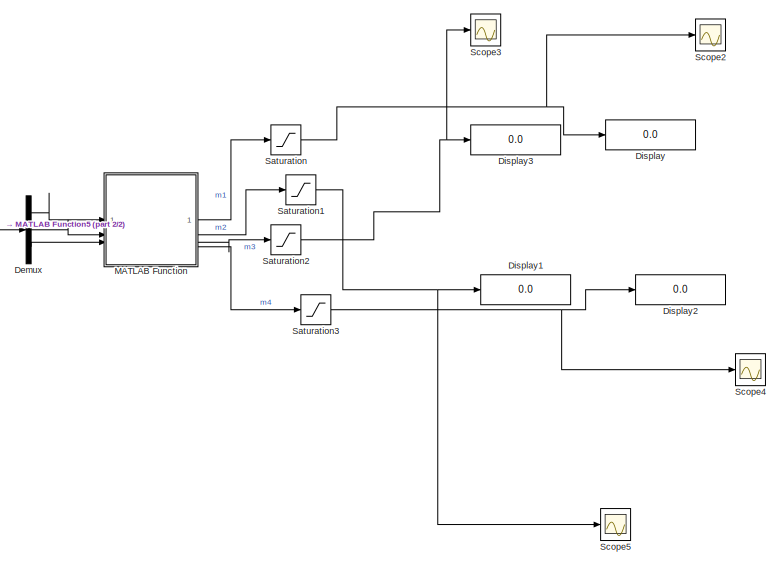
[diagram: root canvas - part 1/2, right side, full height]
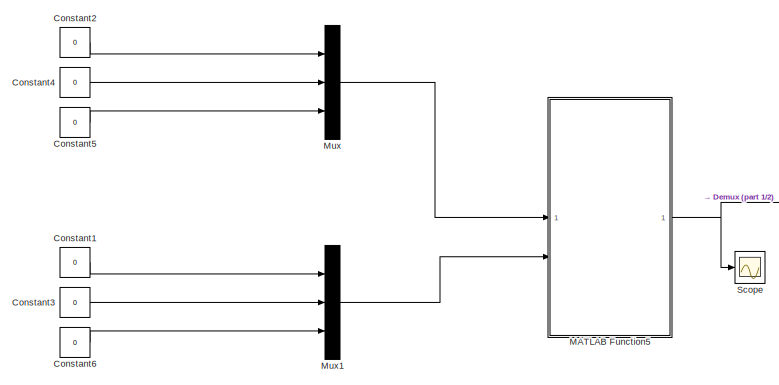
[diagram: root canvas - part 2/2, middle left region]
MODEL slx_4af3f543ec62
KIND model
CONFIG AbsTol = auto
CONFIG EnableMultiTasking = on
CONFIG FixedStep = 0.0201
CONFIG InitFcn = load2slx
CONFIG MaxStep = auto
CONFIG MinStep = auto
CONFIG RelTol = 1e-3
CONFIG SampleTimeConstraint = Unconstrained
CONFIG SolverName = FixedStepAuto
CONFIG StartTime = 0.0
CONFIG StopTime = inf
WORKSPACE source: mxarray member
WORKSPACE F = [1.0101 0 0 1.02030201 0 0 1.0306070603 0 0 1.04101619161 0 0 ... (45 elements, 15x3)]
WORKSPACE G = [0.3357 0 0 0.33909057 0 0 0.342515384757 0 0 0.345974790143 0 0 ... (225 elements, 15x15)]
WORKSPACE H = [1.90762936235 -3.65415117825e-17 0 0.786986310617 -3.61761328408e-17 0 0.666422736628 -3.58144073268e-17 0 0.545926464672 -3.54562987099e-17 0 ... (225 elements, 15x15)]
WORKSPACE Pc = [-0.3357 0 0 0.3357 0 0 -0.33909057 0 0 0.33909057 0 0 ... (990 elements, 66x15)]
WORKSPACE Qvec = [1 0 0 0 0 0 0 0 0 0 0 0 ... (225 elements, 15x15)]
WORKSPACE Sc = [1.0101 0 0 -1.0101 0 0 1.02030201 0 0 -1.02030201 0 0 ... (198 elements, 66x3)]
WORKSPACE m = 3
WORKSPACE nu = 15
WORKSPACE qc = [1 1 0.5 1 1 0.5 1 1 0.5 1 1 0.5 ... (66 elements, 66x1)]
BLOCK [Constant] Constant1
  Value = 0
BLOCK [Constant] Constant2
  Value = 0
BLOCK [Constant] Constant3
  Value = 0
BLOCK [Constant] Constant4
  Value = 0
BLOCK [Constant] Constant5
  Value = 0
BLOCK [Constant] Constant6
  Value = 0
BLOCK [Demux] Demux
  Outputs = 3
BLOCK [Display] Display
  Decimation = 1
BLOCK [Display] Display1
  Decimation = 1
BLOCK [Display] Display2
  Decimation = 1
BLOCK [Display] Display3
  Decimation = 1
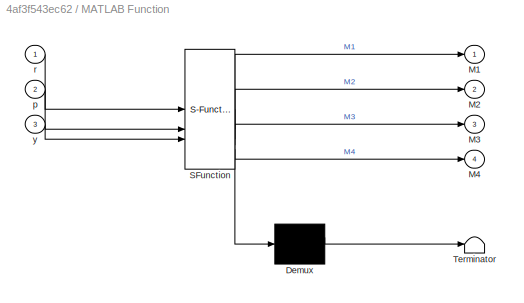
BLOCK [SubSystem] MATLAB Function
  ErrorFcn = Stateflow.Translate.translate
  PermitHierarchicalResolution = ExplicitOnly
  SFBlockType = MATLAB Function
  SystemSampleTime = 0.0201
  TreatAsAtomicUnit = on
BLOCK [Demux] MATLAB Function/ Demux 
  Outputs = 1
BLOCK [S-Function] MATLAB Function/ SFunction 
  EnableBusSupport = off
  FunctionName = sf_sfun
  PortCounts = [3 5]
  SFcnIsStateOwnerBlock = off
  SFunctionDeploymentMode = off
  Tag = Stateflow S-Function 2
BLOCK [Terminator] MATLAB Function/ Terminator 
BLOCK [Outport] MATLAB Function/M1
  VectorParamsAs1DForOutWhenUnconnected = off
BLOCK [Outport] MATLAB Function/M2
  Port = 2
BLOCK [Outport] MATLAB Function/M3
  Port = 3
BLOCK [Outport] MATLAB Function/M4
  Port = 4
BLOCK [Inport] MATLAB Function/p
  Port = 2
BLOCK [Inport] MATLAB Function/r
BLOCK [Inport] MATLAB Function/y
  Port = 3
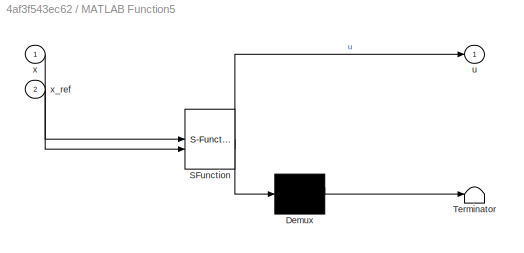
BLOCK [SubSystem] MATLAB Function5
  ErrorFcn = Stateflow.Translate.translate
  PermitHierarchicalResolution = ExplicitOnly
  SFBlockType = MATLAB Function
  SystemSampleTime = 0.0201
  TreatAsAtomicUnit = on
BLOCK [Demux] MATLAB Function5/ Demux 
  Outputs = 1
BLOCK [S-Function] MATLAB Function5/ SFunction 
  EnableBusSupport = off
  FunctionName = sf_sfun
  Parameters = F,G,H,Pc,Qvec,Sc,qc
  PortCounts = [2 2]
  SFcnIsStateOwnerBlock = off
  SFunctionDeploymentMode = off
  Tag = Stateflow S-Function 6
BLOCK [Terminator] MATLAB Function5/ Terminator 
BLOCK [Outport] MATLAB Function5/u
  VectorParamsAs1DForOutWhenUnconnected = off
BLOCK [Inport] MATLAB Function5/x
BLOCK [Inport] MATLAB Function5/x_ref
  Port = 2
BLOCK [Mux] Mux
  DisplayOption = bar
  Inputs = 3
BLOCK [Mux] Mux1
  DisplayOption = bar
  Inputs = 3
BLOCK [Saturate] Saturation
  LowerLimit = 0
  UpperLimit = 1
BLOCK [Saturate] Saturation1
  LowerLimit = 0
  UpperLimit = 1
BLOCK [Saturate] Saturation2
  LowerLimit = 0
  UpperLimit = 1
BLOCK [Saturate] Saturation3
  LowerLimit = 0
  UpperLimit = 1
BLOCK [Scope] Scope
  ActiveDisplayYMaximum = 0.097577906132606917
  ActiveDisplayYMinimum = -0.053985449326909025
  Floating = off
  GraphicalSettings = {"AxesScalingProperties":{"AlignXAxis":"Center","AlignYAxis":"Center","AutoScaleXAxisLimits":false,"AxesScaling":"Manual","AxesScalingNumUpdates":10,"ExpandOnly":true,"ScaleAxesLimitsAtStop":false,"XAxisDataRange":100,"YAxisDataRange":80},"DisplayProperties":{"ColorOrder":["auto","auto","auto","auto","auto","auto","auto","auto","auto","auto","auto","auto","auto","auto","auto","auto","auto","auto",...<+2276ch>
  MultipleDisplayCache = [{"MaxYLimMag":10,"MaxYLimReal":0.097577906132606917,"MinYLimMag":0,"MinYLimReal":-0.053985449326909025,"PlotAsMagnitudePhase":false,"ShowGrid":true,"ShowLegend":true,"Title":"%<SignalLabel>","YLabel":""}]
  NumInputPorts = 1
  ScopeFrameLocation = window
  ShowLegend = on
  WasSavedAsWebScope = on
  WindowPosition = [1319.000000,239.000000,560.000000,420.000000,]
BLOCK [Scope] Scope2
  DataLoggingVariableName = ScopeData2
  Floating = off
  GraphicalSettings = {"GraphicalSettings":{"LegacySettings":true,"Style":{"Style":{"PlotType":"Auto"}}}}
  NumInputPorts = 1
  ScopeFrameLocation = window
  WasSavedAsWebScope = on
  WindowPosition = [3094.000000,516.000000,560.000000,420.000000,]
BLOCK [Scope] Scope3
  DataLoggingVariableName = ScopeData3
  Floating = off
  GraphicalSettings = {"GraphicalSettings":{"LegacySettings":true,"Style":{"Style":{"PlotType":"Auto"}}}}
  NumInputPorts = 1
  ScopeFrameLocation = window
  WasSavedAsWebScope = on
  WindowPosition = [2378.000000,510.000000,560.000000,420.000000,]
BLOCK [Scope] Scope4
  DataLoggingVariableName = ScopeData4
  Floating = off
  GraphicalSettings = {"GraphicalSettings":{"LegacySettings":true,"Style":{"Style":{"PlotType":"Auto"}}}}
  NumInputPorts = 1
  ScopeFrameLocation = window
  WasSavedAsWebScope = on
  WindowPosition = [3129.000000,16.000000,560.000000,420.000000,]
BLOCK [Scope] Scope5
  DataLoggingVariableName = ScopeData5
  Floating = off
  GraphicalSettings = {"GraphicalSettings":{"LegacySettings":true,"Style":{"Style":{"PlotType":"Auto"}}}}
  NumInputPorts = 1
  ScopeFrameLocation = window
  WasSavedAsWebScope = on
  WindowPosition = [2402.000000,65.000000,560.000000,420.000000,]
LINE Constant1:1 -> Mux1:1
LINE Constant2:1 -> Mux:1
LINE Constant3:1 -> Mux1:2
LINE Constant4:1 -> Mux:2
LINE Constant5:1 -> Mux:3
LINE Constant6:1 -> Mux1:3
LINE Demux:1 -> MATLAB Function:1
LINE Demux:2 -> MATLAB Function:2
LINE Demux:3 -> MATLAB Function:3
NET MATLAB Function5:1 -> Demux:1, Scope:1
LINE MATLAB Function:1 -> Saturation:1
LINE MATLAB Function:2 -> Saturation1:1
LINE MATLAB Function:3 -> Saturation2:1
LINE MATLAB Function:4 -> Saturation3:1
LINE Mux1:1 -> MATLAB Function5:2
LINE Mux:1 -> MATLAB Function5:1
NET Saturation1:1 -> Display1:1, Scope5:1
NET Saturation2:1 -> Display3:1, Scope3:1
NET Saturation3:1 -> Display2:1, Scope4:1
NET Saturation:1 -> Display:1, Scope2:1
note: NET lines group one-source signal fan-out (src -> all destinations, sorted); 1:1 wires keep LINE
CHART MATLAB Function states=1 transitions=1
  STATE_LABEL 'eML_blk_kernel()'
  STATE_LABEL 'SCRIPT:\nfunction [M1,M2,M3,M4] = fcn( r, p, y)\n% t: thrust\n% r: roll\n% p: pitch\n% y: yaw\npersistent trim mixer thrust\n% M1 = t + r + p - y;\n% M2 = t - r - p - y;\n% M3 = t - r + p + y;\n% M4 = t + r - p + y;\ntrim = [0.1344;0.2078;0.1551;0.2548];\nthrust = 0;\nu = [r;p;y; thrust];\nmixer = [-1 1 1 -1;\n        1 -1 1 -1;\n        -1 -1 1 1\n        1 1 1 1];\nM = mixer\\u;\nM1= M(1,1)+trim(1,1);\nM2= M(2,1)+tr...<+53ch>'
CHART MATLAB Function5 states=1 transitions=1
  STATE_LABEL 'eML_blk_kernel()'
  STATE_LABEL "SCRIPT:\nfunction u = mpc_function(x,x_ref, H, F, Qvec, G, Pc, qc, Sc)\npersistent opts x0 u_prev\nx = double(x);\nx_ref= double(x_ref);\nif isempty(u_prev)\n    u_prev = zeros(3,1,'double');\nend\n\nif isempty(x0)\n    x0 = zeros(15,1,'double');\nend\nx_tilde = x - x_ref;\n% uvec = zeros(nu,1);\n\n% === Construcción del QP ===\nf = (2*x_tilde'*F'*Qvec*G)';\n\n% Resolver QP\nif isempty(opts)\nopts = optimoptions('qua...<+253ch>"
CHART  states=0 transitions=0
CHART  states=0 transitions=0
